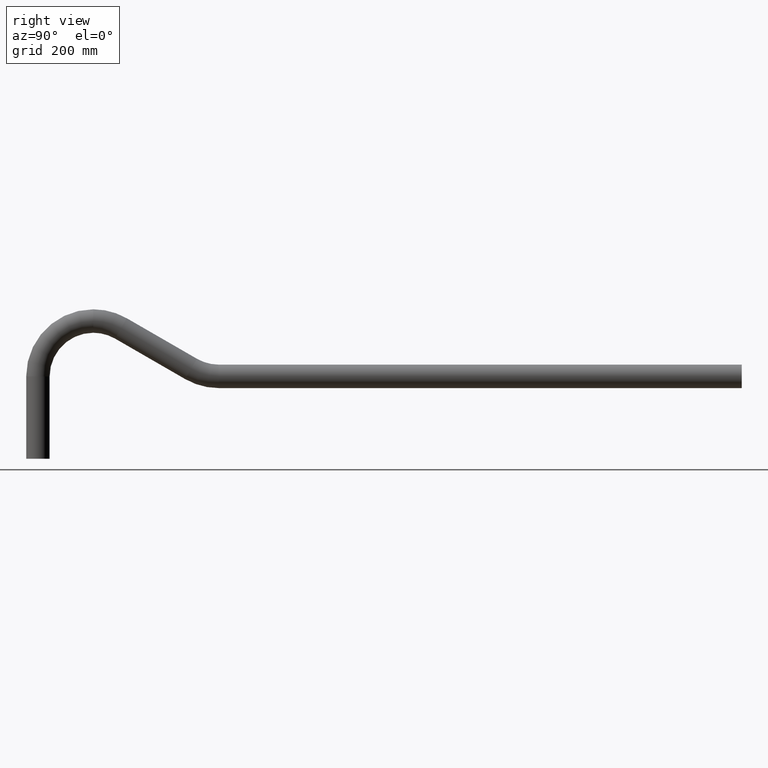
[diagram: clean part render]
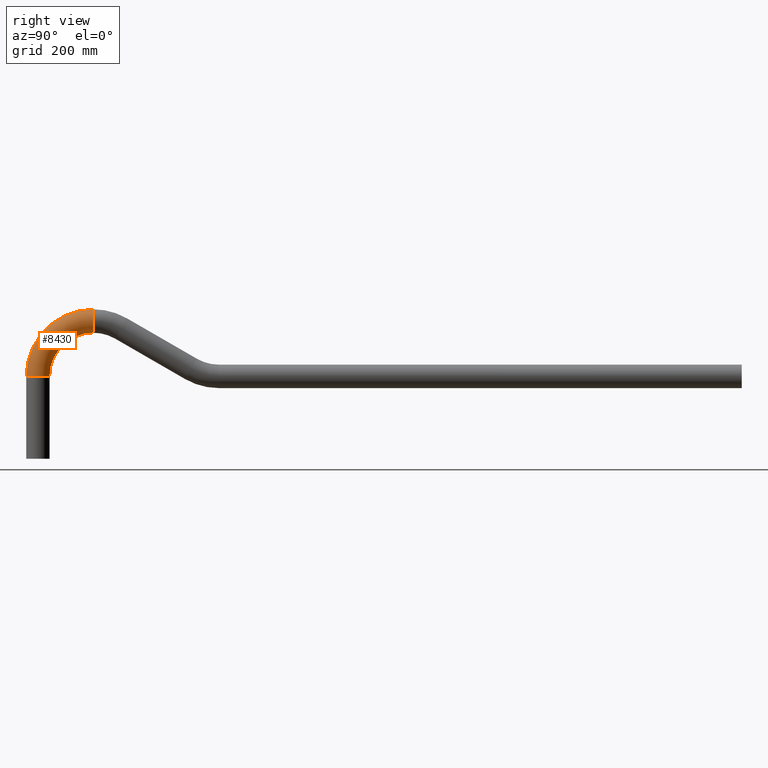
[diagram: same view with one face highlighted and labeled with its STEP entity id]
A machine part, right view. The second image highlights one B-rep face of the part: STEP entity #8430.
In plain terms, the highlighted toroidal blend (fillet) surface has major radius 100 mm and minor (blend) radius 21.2 mm.
Its self-contained STEP definition (entity closure, byte-faithful):
#256 = AXIS2_PLACEMENT_3D ( 'NONE', #2306, #6036, #8800 ) ;
#475 = CIRCLE ( 'NONE', #2404, 78.79999999999998300 ) ;
#555 = ORIENTED_EDGE ( 'NONE', *, *, #6239, .F. ) ;
#1338 = DIRECTION ( 'NONE',  ( 0.0000000000000000000, 0.0000000000000000000, 1.000000000000000000 ) ) ;
#2288 = CARTESIAN_POINT ( 'NONE',  ( 0.0000000000000000000, 78.79999999999957100, 195.5999999999999900 ) ) ;
#2306 = CARTESIAN_POINT ( 'NONE',  ( 0.0000000000000000000, 78.79999999999957100, 74.40000000000002000 ) ) ;
#2404 = AXIS2_PLACEMENT_3D ( 'NONE', #7962, #3010, #8915 ) ;
#3010 = DIRECTION ( 'NONE',  ( -1.000000000000000000, -0.0000000000000000000, 0.0000000000000000000 ) ) ;
#3199 = CARTESIAN_POINT ( 'NONE',  ( 0.0000000000000000000, 78.79999999999957100, 174.4000000000000100 ) ) ;
#3451 = VERTEX_POINT ( 'NONE', #4117 ) ;
#3875 = EDGE_CURVE ( 'NONE', #9891, #3451, #7874, .T. ) ;
#3906 = AXIS2_PLACEMENT_3D ( 'NONE', #6589, #9133, #4933 ) ;
#3934 = DIRECTION ( 'NONE',  ( 0.0000000000000000000, 0.0000000000000000000, -1.000000000000000000 ) ) ;
#4001 = CARTESIAN_POINT ( 'NONE',  ( 2.596251214192388800E-015, -42.40000000000041800, 74.39999999999996300 ) ) ;
#4117 = CARTESIAN_POINT ( 'NONE',  ( 0.0000000000000000000, -4.163336342344337000E-013, 74.39999999999996300 ) ) ;
#4143 = ORIENTED_EDGE ( 'NONE', *, *, #7888, .T. ) ;
#4933 = DIRECTION ( 'NONE',  ( 1.000000000000000000, 0.0000000000000000000, 0.0000000000000000000 ) ) ;
#5535 = CARTESIAN_POINT ( 'NONE',  ( 0.0000000000000000000, 78.79999999999957100, 74.40000000000002000 ) ) ;
#5607 = VERTEX_POINT ( 'NONE', #7263 ) ;
#6036 = DIRECTION ( 'NONE',  ( -1.000000000000000000, -0.0000000000000000000, 0.0000000000000000000 ) ) ;
#6239 = EDGE_CURVE ( 'NONE', #9891, #9455, #8893, .T. ) ;
#6589 = CARTESIAN_POINT ( 'NONE',  ( 0.0000000000000000000, -21.20000000000041500, 74.39999999999996300 ) ) ;
#6666 = CIRCLE ( 'NONE', #9773, 21.19999999999999600 ) ;
#6936 = ORIENTED_EDGE ( 'NONE', *, *, #3875, .T. ) ;
#6959 = AXIS2_PLACEMENT_3D ( 'NONE', #5535, #7059, #1338 ) ;
#7059 = DIRECTION ( 'NONE',  ( -1.000000000000000000, -0.0000000000000000000, 0.0000000000000000000 ) ) ;
#7263 = CARTESIAN_POINT ( 'NONE',  ( 0.0000000000000000000, 78.79999999999957100, 153.1999999999999900 ) ) ;
#7435 = EDGE_CURVE ( 'NONE', #3451, #5607, #475, .T. ) ;
#7874 = CIRCLE ( 'NONE', #3906, 21.19999999999999900 ) ;
#7888 = EDGE_CURVE ( 'NONE', #5607, #9455, #6666, .T. ) ;
#7962 = CARTESIAN_POINT ( 'NONE',  ( 2.596251214192388800E-015, 78.79999999999957100, 74.40000000000002000 ) ) ;
#8430 = ADVANCED_FACE ( 'NONE', ( #9484 ), #9129, .T. ) ;
#8800 = DIRECTION ( 'NONE',  ( 0.0000000000000000000, 0.0000000000000000000, 1.000000000000000000 ) ) ;
#8893 = CIRCLE ( 'NONE', #256, 121.1999999999999700 ) ;
#8915 = DIRECTION ( 'NONE',  ( 0.0000000000000000000, 0.0000000000000000000, 1.000000000000000000 ) ) ;
#9129 = TOROIDAL_SURFACE ( 'NONE', #6959, 99.99999999999997200, 21.19999999999999900 ) ;
#9133 = DIRECTION ( 'NONE',  ( 0.0000000000000000000, 0.0000000000000000000, 1.000000000000000000 ) ) ;
#9244 = ORIENTED_EDGE ( 'NONE', *, *, #7435, .T. ) ;
#9419 = EDGE_LOOP ( 'NONE', ( #555, #6936, #9244, #4143 ) ) ;
#9455 = VERTEX_POINT ( 'NONE', #2288 ) ;
#9484 = FACE_OUTER_BOUND ( 'NONE', #9419, .T. ) ;
#9773 = AXIS2_PLACEMENT_3D ( 'NONE', #3199, #10507, #3934 ) ;
#9891 = VERTEX_POINT ( 'NONE', #4001 ) ;
#10507 = DIRECTION ( 'NONE',  ( 0.0000000000000000000, -1.000000000000000000, 0.0000000000000000000 ) ) ;